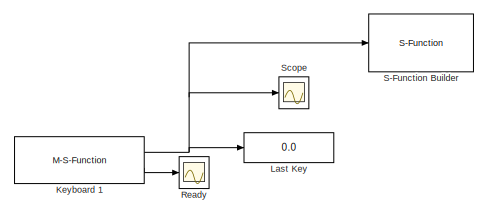
[diagram: root canvas - part 1/2, top left region]
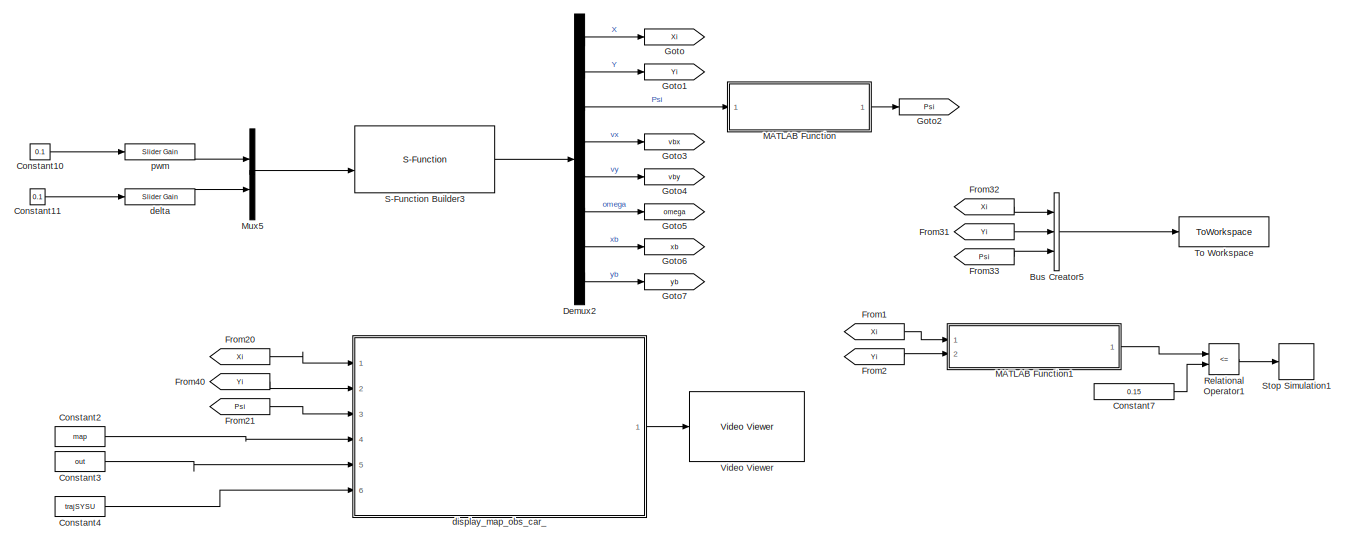
[diagram: root canvas - part 2/2, full width, bottom band]
MODEL slx_0e51cda01d27
KIND model
CONFIG AbsTol = auto
CONFIG FixedStep = 0.001
CONFIG InitFcn = load('sysu_standard.mat');\nload('traj_diySYSU.mat');
CONFIG MaxStep = auto
CONFIG MinStep = auto
CONFIG RelTol = 1e-3
CONFIG SampleTimeConstraint = Unconstrained
CONFIG Solver = FixedStepAuto
CONFIG SolverMode = SingleTasking
CONFIG SolverName = FixedStepAuto
CONFIG StartTime = 0.0
CONFIG StopTime = 40
BLOCK [BusCreator] Bus Creator5
  DisplayOption = bar
  InheritFromInputs = on
  Inputs = 3
  Ports = [3, 1]
BLOCK [Constant] Constant10
  Value = 0.1
BLOCK [Constant] Constant11
  Value = 0.1
BLOCK [Constant] Constant2
  Value = map
BLOCK [Constant] Constant3
  Value = out
BLOCK [Constant] Constant4
  Value = trajSYSU
BLOCK [Constant] Constant7
  Value = 0.15
BLOCK [Demux] Demux2
  Outputs = 8
  Ports = [1, 8]
BLOCK [From] From1
  GotoTag = Xi
BLOCK [From] From2
  GotoTag = Yi
BLOCK [From] From20
  GotoTag = Xi
BLOCK [From] From21
  GotoTag = Psi
BLOCK [From] From31
  GotoTag = Yi
BLOCK [From] From32
  GotoTag = Xi
BLOCK [From] From33
  GotoTag = Psi
BLOCK [From] From40
  GotoTag = Yi
BLOCK [Goto] Goto
  GotoTag = Xi
BLOCK [Goto] Goto1
  GotoTag = Yi
BLOCK [Goto] Goto2
  GotoTag = Psi
BLOCK [Goto] Goto3
  GotoTag = vbx
BLOCK [Goto] Goto4
  GotoTag = vby
BLOCK [Goto] Goto5
  GotoTag = omega
BLOCK [Goto] Goto6
  GotoTag = xb
BLOCK [Goto] Goto7
  GotoTag = yb
BLOCK [M-S-Function] Keyboard 1
  Commented = on
  FunctionName = sfun_keyboard_input_v1_2b
  Ports = [0, 2]
BLOCK [Display] Last Key
  Commented = on
  Decimation = 1
  Ports = [1]
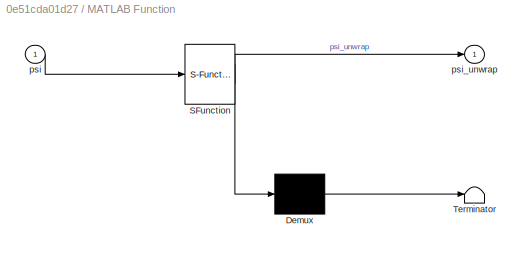
BLOCK [SubSystem] MATLAB Function
  ErrorFcn = Stateflow.Translate.translate
  PermitHierarchicalResolution = ExplicitOnly
  Ports = [1, 1]
  RequestExecContextInheritance = off
  SFBlockType = MATLAB Function
  TreatAsAtomicUnit = on
BLOCK [Demux] MATLAB Function/ Demux 
  Outputs = 1
  Ports = [1, 1]
BLOCK [S-Function] MATLAB Function/ SFunction 
  EnableBusSupport = on
  FunctionName = sf_sfun
  PortCounts = [1 2]
  Ports = [1, 2]
  SFunctionDeploymentMode = off
  Tag = Stateflow S-Function car_sim_for_student_r2015 3
BLOCK [Terminator] MATLAB Function/ Terminator 
BLOCK [Inport] MATLAB Function/psi
BLOCK [Outport] MATLAB Function/psi_unwrap
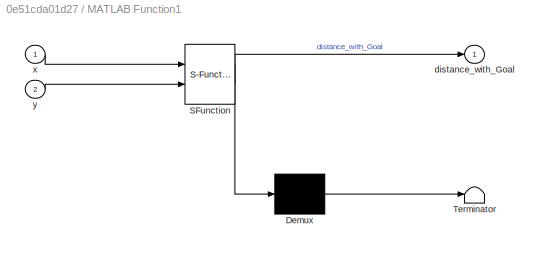
BLOCK [SubSystem] MATLAB Function1
  ErrorFcn = Stateflow.Translate.translate
  PermitHierarchicalResolution = ExplicitOnly
  Ports = [2, 1]
  RequestExecContextInheritance = off
  SFBlockType = MATLAB Function
  TreatAsAtomicUnit = on
BLOCK [Demux] MATLAB Function1/ Demux 
  Outputs = 1
  Ports = [1, 1]
BLOCK [S-Function] MATLAB Function1/ SFunction 
  EnableBusSupport = on
  FunctionName = sf_sfun
  PortCounts = [2 2]
  Ports = [2, 2]
  SFunctionDeploymentMode = off
  Tag = Stateflow S-Function car_sim_for_student_r2015 1
BLOCK [Terminator] MATLAB Function1/ Terminator 
BLOCK [Outport] MATLAB Function1/distance_with_Goal
BLOCK [Inport] MATLAB Function1/x
BLOCK [Inport] MATLAB Function1/y
  Port = 2
BLOCK [Mux] Mux5
  DisplayOption = bar
  Inputs = 2
  Ports = [2, 1]
BLOCK [Scope] Ready
  Commented = on
  Floating = off
  NumInputPorts = 1
  Ports = [1]
  ScopeSpecificationString = Simulink.scopes.TimeScopeBlockCfg('CurrentConfiguration', extmgr.ConfigurationSet(extmgr.Configuration('Core','General UI',true),extmgr.Configuration('Core','Source UI',true),extmgr.Configuration('Sources','WiredSimulink',true,'DataLoggingVariableName','ScopeData1','DataLoggingSaveFormat','StructureWithTime','DataLoggingLimitDataPoints',true,'DataLoggingDecimation','1','DataLoggingDecimateData',tr...<+1674ch>
BLOCK [RelationalOperator] Relational Operator1
  InputSameDT = off
  Operator = <=
  OutDataTypeStr = boolean
  Ports = [2, 1]
BLOCK [S-Function] S-Function Builder
  Commented = on
  CopyFcn = set_param(gcbh,'LinkStatus','none')
  EnableBusSupport = off
  FunctionName = key
  OpenFcn = sfunctionwizard(gcbh)
  Ports = [1, 1]
  SFunctionDeploymentMode = off
  SFunctionModules = key_wrapper
BLOCK [S-Function] S-Function Builder3
  CopyFcn = set_param(gcbh,'LinkStatus','none')
  EnableBusSupport = off
  FunctionName = car_fast_sfunc
  OpenFcn = sfunctionwizard(gcbh)
  Ports = [2, 1]
  SFunctionDeploymentMode = off
  SFunctionModules = car_fast_sfunc_wrapper
BLOCK [Scope] Scope
  Commented = on
  Floating = off
  NumInputPorts = 1
  Ports = [1]
  ScopeSpecificationString = Simulink.scopes.TimeScopeBlockCfg('CurrentConfiguration', extmgr.ConfigurationSet(extmgr.Configuration('Core','General UI',true),extmgr.Configuration('Core','Source UI',true),extmgr.Configuration('Sources','WiredSimulink',true,'DataLoggingSaveFormat','StructureWithTime','DataLoggingLimitDataPoints',true,'DataLoggingDecimation','1','DataLoggingDecimateData',true),extmgr.Configuration('Visuals','Tim...<+1623ch>
BLOCK [Stop] Stop Simulation1
BLOCK [ToWorkspace] To Workspace
  FixptAsFi = on
  MaxDataPoints = inf
  Ports = [1]
  SampleTime = -1
  SaveFormat = Timeseries
  VariableName = simout
BLOCK [Reference] Video Viewer  REF=visionsinks/Video Viewer
  Ports = [1]
  SourceBlock = visionsinks/Video Viewer
  SourceType = Video Viewer
  UserDataPersistent = on
BLOCK [Reference] delta  REF=simulink/Math
Operations/Slider
Gain
  Ports = [1, 1]
  SourceBlock = simulink/Math\nOperations/Slider\nGain
  SourceType = Slider Gain
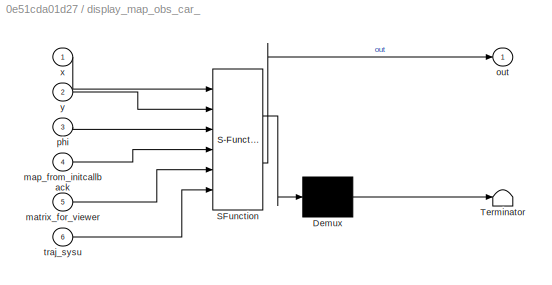
BLOCK [SubSystem] display_map_obs_car_
  ErrorFcn = Stateflow.Translate.translate
  PermitHierarchicalResolution = ExplicitOnly
  Ports = [6, 1]
  RequestExecContextInheritance = off
  SFBlockType = MATLAB Function
  TreatAsAtomicUnit = on
BLOCK [Demux] display_map_obs_car_/ Demux 
  Outputs = 1
  Ports = [1, 1]
BLOCK [S-Function] display_map_obs_car_/ SFunction 
  EnableBusSupport = on
  FunctionName = sf_sfun
  PortCounts = [6 2]
  Ports = [6, 2]
  SFunctionDeploymentMode = off
  Tag = Stateflow S-Function car_sim_for_student_r2015 2
BLOCK [Terminator] display_map_obs_car_/ Terminator 
BLOCK [Inport] display_map_obs_car_/map_from_initcallback
  Port = 4
BLOCK [Inport] display_map_obs_car_/matrix_for_viewer
  Port = 5
BLOCK [Outport] display_map_obs_car_/out
BLOCK [Inport] display_map_obs_car_/phi
  Port = 3
BLOCK [Inport] display_map_obs_car_/traj_sysu
  Port = 6
BLOCK [Inport] display_map_obs_car_/x
BLOCK [Inport] display_map_obs_car_/y
  Port = 2
BLOCK [Reference] pwm  REF=simulink/Math
Operations/Slider
Gain
  Ports = [1, 1]
  SourceBlock = simulink/Math\nOperations/Slider\nGain
  SourceType = Slider Gain
LINE Bus Creator5:1 -> To Workspace:1
LINE Constant10:1 -> pwm:1
LINE Constant11:1 -> delta:1
LINE Constant2:1 -> display_map_obs_car_:4
LINE Constant3:1 -> display_map_obs_car_:5
LINE Constant4:1 -> display_map_obs_car_:6
LINE Constant7:1 -> Relational Operator1:2
LINE Demux2:1 -> Goto:1
LINE Demux2:2 -> Goto1:1
LINE Demux2:3 -> MATLAB Function:1
LINE Demux2:4 -> Goto3:1
LINE Demux2:5 -> Goto4:1
LINE Demux2:6 -> Goto5:1
LINE Demux2:7 -> Goto6:1
LINE Demux2:8 -> Goto7:1
LINE From1:1 -> MATLAB Function1:1
LINE From20:1 -> display_map_obs_car_:1
LINE From21:1 -> display_map_obs_car_:3
LINE From2:1 -> MATLAB Function1:2
LINE From31:1 -> Bus Creator5:2
LINE From32:1 -> Bus Creator5:1
LINE From33:1 -> Bus Creator5:3
LINE From40:1 -> display_map_obs_car_:2
NET Keyboard 1:1 -> Last Key:1, S-Function Builder:1, Scope:1
LINE Keyboard 1:2 -> Ready:1
LINE MATLAB Function1:1 -> Relational Operator1:1
LINE MATLAB Function:1 -> Goto2:1
LINE Mux5:1 -> S-Function Builder3:2
LINE Relational Operator1:1 -> Stop Simulation1:1
LINE S-Function Builder3:1 -> Demux2:1
LINE delta:1 -> Mux5:2
LINE display_map_obs_car_:1 -> Video Viewer:1
LINE pwm:1 -> Mux5:1
note: NET lines group one-source signal fan-out (src -> all destinations, sorted); 1:1 wires keep LINE
CHART MATLAB Function1 states=1 transitions=1
  STATE_LABEL 'eML_blk_kernel()'
  STATE_LABEL 'SCRIPT:\nfunction distance_with_Goal = cal_distance(x,y)\ndistance_with_Goal=sqrt((x-11.3)*(x-11.3)+(y-4.5)*(y-4.5))\n'
CHART display_map_obs_car_ states=1 transitions=1
  STATE_LABEL 'eML_blk_kernel()'
  STATE_LABEL 'SCRIPT:\nfunction out = display_map_obs_car_(x,y,phi,map_from_initcallback,matrix_for_viewer,traj_sysu)\n    persistent data;\n    persistent times;\n    if isempty(data)\n        times=1;\n    else\n        times=times+1;\n    end\n\n    % 地图长12m 宽6m   车长0.12 车宽0.06\n    resolution = 0.01;\n    map_long=12;\n    map_wide=6;\n\n    car_long=0.12;\n    car_wide=0.06;\n\n%     % 可视化地图\n%     figure;\n%     imagesc(map)...<+3608ch>'
CHART MATLAB Function states=1 transitions=1
  STATE_LABEL 'eML_blk_kernel()'
  STATE_LABEL 'SCRIPT:\nfunction psi_unwrap = unwrap(psi)\n\nif ( psi > pi)\n    psi = psi - 2*pi;\nend\n\nif( psi <= -pi)\n    psi = psi + 2*pi;\nend\n\npsi_unwrap = psi;\n'
